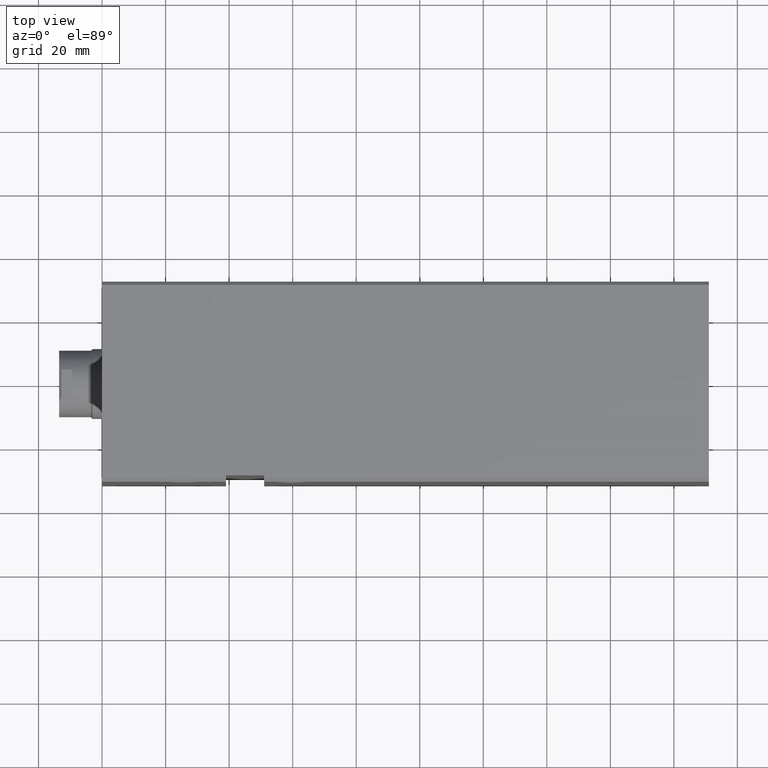
[diagram: clean part render]
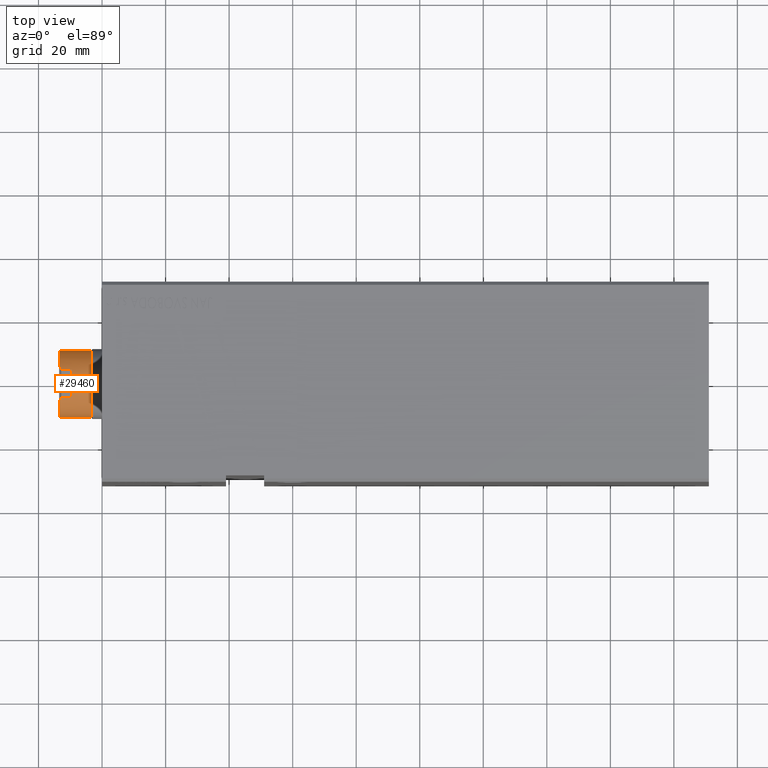
[diagram: same view with one face highlighted and labeled with its STEP entity id]
A machine part, top view. The second image highlights one B-rep face of the part: STEP entity #29460.
In plain terms, the highlighted cylindrical surface (edge-blend (fillet) strip) has radius 10.46 mm, axis along (-1, -0, -0).
Its self-contained STEP definition (entity closure, byte-faithful):
#297 = ORIENTED_EDGE ( 'NONE', *, *, #20183, .F. ) ;
#355 = ORIENTED_EDGE ( 'NONE', *, *, #1380, .T. ) ;
#687 = EDGE_LOOP ( 'NONE', ( #18080, #10207, #4932, #33337, #28491, #6103, #355, #11337, #31674, #297 ) ) ;
#830 = VERTEX_POINT ( 'NONE', #15495 ) ;
#1239 = EDGE_CURVE ( 'NONE', #35510, #8755, #12452, .T. ) ;
#1380 = EDGE_CURVE ( 'NONE', #8755, #29548, #4953, .T. ) ;
#2603 = LINE ( 'NONE', #36705, #13434 ) ;
#2966 = VERTEX_POINT ( 'NONE', #20379 ) ;
#3174 = VERTEX_POINT ( 'NONE', #5210 ) ;
#3263 =( BOUNDED_CURVE ( )  B_SPLINE_CURVE ( 3, ( #11485, #12881, #33893, #27426 ),
 .UNSPECIFIED., .F., .F. ) 
 B_SPLINE_CURVE_WITH_KNOTS ( ( 4, 4 ),
 ( 3.573373807102883326, 3.714471135698164783 ),
 .UNSPECIFIED. ) 
 CURVE ( )  GEOMETRIC_REPRESENTATION_ITEM ( )  RATIONAL_B_SPLINE_CURVE ( ( 1.000000000000000000, 0.9983416499762385321, 0.9983416499762385321, 1.000000000000000000 ) ) 
 REPRESENTATION_ITEM ( '' )  );
#4420 = AXIS2_PLACEMENT_3D ( 'NONE', #28647, #12916, #13118 ) ;
#4932 = ORIENTED_EDGE ( 'NONE', *, *, #26151, .F. ) ;
#4953 = LINE ( 'NONE', #29767, #11148 ) ;
#5210 = CARTESIAN_POINT ( 'NONE',  ( 1.314046015485110656E-15, -10.46000000000002572, 158.5000000000000000 ) ) ;
#6103 = ORIENTED_EDGE ( 'NONE', *, *, #1239, .T. ) ;
#6408 = DIRECTION ( 'NONE',  ( -0.000000000000000000, -1.805224063316483446E-16, 1.000000000000000000 ) ) ;
#6454 = VERTEX_POINT ( 'NONE', #7565 ) ;
#6590 = CARTESIAN_POINT ( 'NONE',  ( 9.500000000000000000, 4.377396486497391770, 168.5000000000000000 ) ) ;
#6801 = FACE_OUTER_BOUND ( 'NONE', #687, .T. ) ;
#7367 = LINE ( 'NONE', #29141, #31097 ) ;
#7565 = CARTESIAN_POINT ( 'NONE',  ( 9.500000000000000000, 4.377396486497391770, 167.7900000000000205 ) ) ;
#8755 = VERTEX_POINT ( 'NONE', #13384 ) ;
#9049 = DIRECTION ( 'NONE',  ( -0.000000000000000000, -1.805224063316483446E-16, 1.000000000000000000 ) ) ;
#10207 = ORIENTED_EDGE ( 'NONE', *, *, #33446, .T. ) ;
#11148 = VECTOR ( 'NONE', #17253, 1000.000000000000000 ) ;
#11337 = ORIENTED_EDGE ( 'NONE', *, *, #34665, .T. ) ;
#11485 = CARTESIAN_POINT ( 'NONE',  ( 9.500000000000000000, -4.377396486497452166, 167.7900000000000205 ) ) ;
#11768 = DIRECTION ( 'NONE',  ( 0.000000000000000000, -1.000000000000000000, 0.000000000000000000 ) ) ;
#12452 = CIRCLE ( 'NONE', #29854, 10.45999999999999908 ) ;
#12806 = CIRCLE ( 'NONE', #4420, 10.45999999999999908 ) ;
#12881 = CARTESIAN_POINT ( 'NONE',  ( 9.293949384395542523, -4.824575729748648456, 167.9960506156045028 ) ) ;
#12916 = DIRECTION ( 'NONE',  ( -0.000000000000000000, -1.805224063316483446E-16, 1.000000000000000000 ) ) ;
#13118 = DIRECTION ( 'NONE',  ( 0.000000000000000000, -1.000000000000000000, 0.000000000000000000 ) ) ;
#13181 = VERTEX_POINT ( 'NONE', #26428 ) ;
#13384 = CARTESIAN_POINT ( 'NONE',  ( 9.500000000000000000, -4.377396486497451278, 164.5000000000000000 ) ) ;
#13434 = VECTOR ( 'NONE', #9049, 1000.000000000000000 ) ;
#13739 = AXIS2_PLACEMENT_3D ( 'NONE', #27096, #39428, #11768 ) ;
#14540 = CARTESIAN_POINT ( 'NONE',  ( 0.000000000000000000, 10.45999999999997065, 158.5000000000000000 ) ) ;
#15495 = CARTESIAN_POINT ( 'NONE',  ( 8.790000000000011582, -5.669876541865807695, 168.5000000000000000 ) ) ;
#16829 = DIRECTION ( 'NONE',  ( -1.000000000000000000, 0.000000000000000000, 0.000000000000000000 ) ) ;
#16916 =( BOUNDED_CURVE ( )  B_SPLINE_CURVE ( 3, ( #33665, #30837, #18320, #24367 ),
 .UNSPECIFIED., .F., .F. ) 
 B_SPLINE_CURVE_WITH_KNOTS ( ( 4, 4 ),
 ( 2.568714171481421449, 2.709811500076702906 ),
 .UNSPECIFIED. ) 
 CURVE ( )  GEOMETRIC_REPRESENTATION_ITEM ( )  RATIONAL_B_SPLINE_CURVE ( ( 1.000000000000000000, 0.9983416499762385321, 0.9983416499762385321, 1.000000000000000000 ) ) 
 REPRESENTATION_ITEM ( '' )  );
#17253 = DIRECTION ( 'NONE',  ( -0.000000000000000000, -1.805224063316483446E-16, 1.000000000000000000 ) ) ;
#18080 = ORIENTED_EDGE ( 'NONE', *, *, #20780, .T. ) ;
#18320 = CARTESIAN_POINT ( 'NONE',  ( 9.293949384395540747, 4.824575729748590724, 167.9960506156045028 ) ) ;
#18881 = DIRECTION ( 'NONE',  ( 0.000000000000000000, 1.805224063316483446E-16, -1.000000000000000000 ) ) ;
#19694 = DIRECTION ( 'NONE',  ( -0.000000000000000000, -1.805224063316483446E-16, 1.000000000000000000 ) ) ;
#20054 = CARTESIAN_POINT ( 'NONE',  ( 8.790000000000011582, 5.669876541865746411, 168.5000000000000000 ) ) ;
#20183 = EDGE_CURVE ( 'NONE', #3174, #13181, #2603, .T. ) ;
#20379 = CARTESIAN_POINT ( 'NONE',  ( 1.280980551908131330E-15, 10.45999999999996888, 168.5000000000000000 ) ) ;
#20780 = EDGE_CURVE ( 'NONE', #3174, #28114, #12806, .T. ) ;
#20907 = CIRCLE ( 'NONE', #36399, 10.46000000000000085 ) ;
#21304 = VERTEX_POINT ( 'NONE', #20054 ) ;
#21767 = CARTESIAN_POINT ( 'NONE',  ( 9.500000000000000000, 4.377396486497392658, 164.5000000000000000 ) ) ;
#22794 = VECTOR ( 'NONE', #18881, 1000.000000000000000 ) ;
#23639 = EDGE_CURVE ( 'NONE', #6454, #35510, #34436, .T. ) ;
#24367 = CARTESIAN_POINT ( 'NONE',  ( 9.500000000000000000, 4.377396486497391770, 167.7900000000000205 ) ) ;
#25148 = DIRECTION ( 'NONE',  ( 0.000000000000000000, -1.000000000000000000, 0.000000000000000000 ) ) ;
#26151 = EDGE_CURVE ( 'NONE', #21304, #2966, #20907, .T. ) ;
#26428 = CARTESIAN_POINT ( 'NONE',  ( 0.000000000000000000, -10.46000000000002927, 168.5000000000000000 ) ) ;
#27096 = CARTESIAN_POINT ( 'NONE',  ( 0.000000000000000000, -3.041802546688275165E-14, 168.5000000000000000 ) ) ;
#27426 = CARTESIAN_POINT ( 'NONE',  ( 8.790000000000011582, -5.669876541865807695, 168.5000000000000000 ) ) ;
#28114 = VERTEX_POINT ( 'NONE', #14540 ) ;
#28491 = ORIENTED_EDGE ( 'NONE', *, *, #23639, .T. ) ;
#28647 = CARTESIAN_POINT ( 'NONE',  ( 0.000000000000000000, -2.861280140356626145E-14, 158.5000000000000000 ) ) ;
#29141 = CARTESIAN_POINT ( 'NONE',  ( 1.280980551908131330E-15, 10.45999999999996710, 168.5000000000000000 ) ) ;
#29460 = ADVANCED_FACE ( 'NONE', ( #6801 ), #31821, .T. ) ;
#29548 = VERTEX_POINT ( 'NONE', #35248 ) ;
#29767 = CARTESIAN_POINT ( 'NONE',  ( 9.500000000000000000, -4.377396486497452166, 168.5000000000000000 ) ) ;
#29854 = AXIS2_PLACEMENT_3D ( 'NONE', #36000, #29948, #16829 ) ;
#29948 = DIRECTION ( 'NONE',  ( -0.000000000000000000, -0.000000000000000000, -1.000000000000000000 ) ) ;
#29985 = EDGE_CURVE ( 'NONE', #13181, #830, #38234, .T. ) ;
#30261 = EDGE_CURVE ( 'NONE', #21304, #6454, #16916, .T. ) ;
#30837 = CARTESIAN_POINT ( 'NONE',  ( 9.056889589612563185, 5.256118063110160499, 168.2331104103874679 ) ) ;
#31097 = VECTOR ( 'NONE', #38252, 1000.000000000000000 ) ;
#31674 = ORIENTED_EDGE ( 'NONE', *, *, #29985, .F. ) ;
#31821 = CYLINDRICAL_SURFACE ( 'NONE', #34381, 10.45999999999999908 ) ;
#33337 = ORIENTED_EDGE ( 'NONE', *, *, #30261, .T. ) ;
#33446 = EDGE_CURVE ( 'NONE', #28114, #2966, #7367, .T. ) ;
#33665 = CARTESIAN_POINT ( 'NONE',  ( 8.790000000000011582, 5.669876541865746411, 168.5000000000000000 ) ) ;
#33893 = CARTESIAN_POINT ( 'NONE',  ( 9.056889589612563185, -5.256118063110219119, 168.2331104103874679 ) ) ;
#34381 = AXIS2_PLACEMENT_3D ( 'NONE', #37293, #19694, #25148 ) ;
#34436 = LINE ( 'NONE', #6590, #22794 ) ;
#34665 = EDGE_CURVE ( 'NONE', #29548, #830, #3263, .T. ) ;
#35248 = CARTESIAN_POINT ( 'NONE',  ( 9.500000000000000000, -4.377396486497452166, 167.7900000000000205 ) ) ;
#35510 = VERTEX_POINT ( 'NONE', #21767 ) ;
#36000 = CARTESIAN_POINT ( 'NONE',  ( 0.000000000000000000, -2.969593584155615304E-14, 164.5000000000000000 ) ) ;
#36399 = AXIS2_PLACEMENT_3D ( 'NONE', #39925, #6408, #36697 ) ;
#36697 = DIRECTION ( 'NONE',  ( 0.000000000000000000, -1.000000000000000000, 0.000000000000000000 ) ) ;
#36705 = CARTESIAN_POINT ( 'NONE',  ( 0.000000000000000000, -10.46000000000002927, 168.5000000000000000 ) ) ;
#37293 = CARTESIAN_POINT ( 'NONE',  ( 0.000000000000000000, -3.041802546688275165E-14, 168.5000000000000000 ) ) ;
#38234 = CIRCLE ( 'NONE', #13739, 10.46000000000000085 ) ;
#38252 = DIRECTION ( 'NONE',  ( -0.000000000000000000, -1.805224063316483446E-16, 1.000000000000000000 ) ) ;
#39428 = DIRECTION ( 'NONE',  ( -0.000000000000000000, -1.805224063316483446E-16, 1.000000000000000000 ) ) ;
#39925 = CARTESIAN_POINT ( 'NONE',  ( 0.000000000000000000, -3.041802546688275165E-14, 168.5000000000000000 ) ) ;